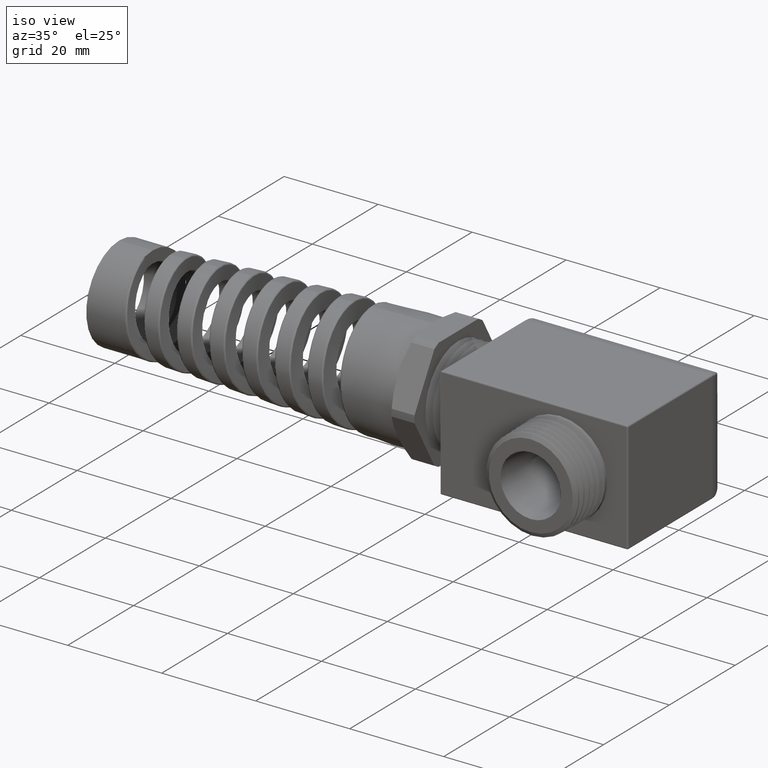
[diagram: clean part render]
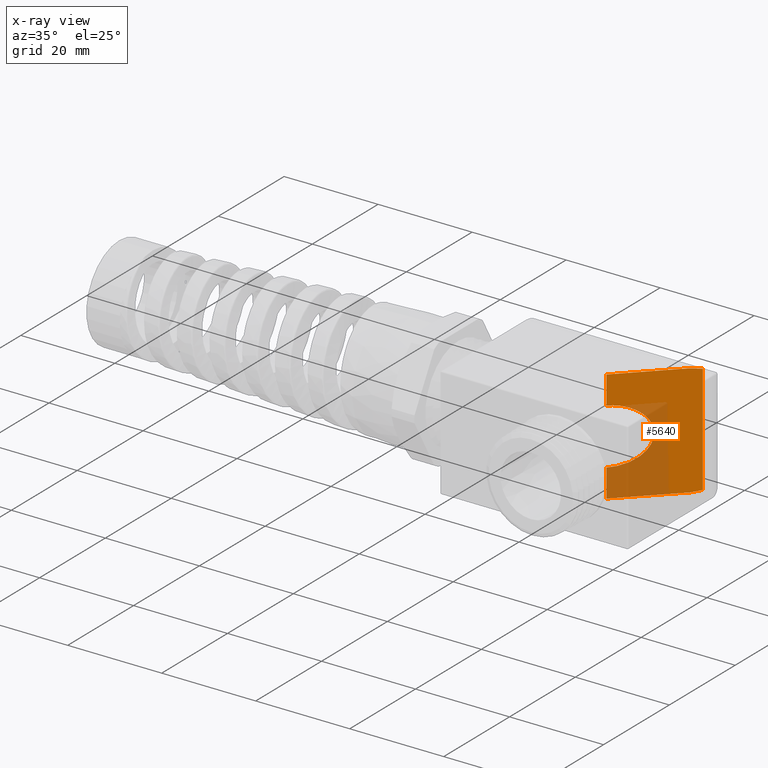
[diagram: x-ray — body ghosted, one internal face saturated and labeled with its STEP entity id]
A machine part, iso view, then the same camera in x-ray: the body is ghosted and one INTERNAL B-rep face — a face not visible from any outside direction — is saturated and labeled: STEP entity #5640.
In plain terms, the highlighted planar face has unit normal (-0.7071, 0.7071, 0).
Its self-contained STEP definition (entity closure, byte-faithful):
#2252 = CARTESIAN_POINT ( 'NONE',  ( 0.9679999999999955300, 0.0000000000000000000, -0.2349999999999999900 ) ) ;
#2292 = CARTESIAN_POINT ( 'NONE',  ( 0.9679999999999955300, 1.616321989494814800E-017, 0.2349999999999999900 ) ) ;
#3158 = DIRECTION ( 'NONE',  ( -0.7071067811865509000, -0.7071067811865441300, 0.0000000000000000000 ) ) ;
#3159 = DIRECTION ( 'NONE',  ( -0.7071067811865441300, 0.7071067811865509000, 0.0000000000000000000 ) ) ;
#3160 = CARTESIAN_POINT ( 'NONE',  ( 1.443555555555555700, 0.4755555555555555100, -0.4703937007874014500 ) ) ;
#3161 = AXIS2_PLACEMENT_3D ( 'NONE', #3160, #3159, #3158 ) ;
#3162 = PLANE ( 'NONE',  #3161 ) ;
#3163 = FACE_OUTER_BOUND ( 'NONE', #5641, .T. ) ;
#3331 = CARTESIAN_POINT ( 'NONE',  ( 1.381333333333332900, 0.4133333333333332700, 0.4699999999999999200 ) ) ;
#3332 = DIRECTION ( 'NONE',  ( 0.0000000000000000000, 0.0000000000000000000, 1.000000000000000000 ) ) ;
#3333 = VECTOR ( 'NONE', #3332, 39.37007874015748100 ) ;
#3334 = CARTESIAN_POINT ( 'NONE',  ( 0.9679999999999955300, 0.0000000000000000000, -0.4703937007874014500 ) ) ;
#3335 = LINE ( 'NONE', #3334, #3333 ) ;
#3336 = DIRECTION ( 'NONE',  ( 0.7071067811865509000, 0.7071067811865441300, 0.0000000000000000000 ) ) ;
#3337 = VECTOR ( 'NONE', #3336, 39.37007874015748100 ) ;
#3338 = CARTESIAN_POINT ( 'NONE',  ( 1.218836982058541400, 0.2508369820585433200, 0.4699999999999999200 ) ) ;
#3339 = LINE ( 'NONE', #3338, #3337 ) ;
#3366 = DIRECTION ( 'NONE',  ( 0.0000000000000000000, 0.0000000000000000000, 1.000000000000000000 ) ) ;
#3367 = VECTOR ( 'NONE', #3366, 39.37007874015748100 ) ;
#3368 = CARTESIAN_POINT ( 'NONE',  ( 0.9679999999999955300, 0.0000000000000000000, -0.4703937007874014500 ) ) ;
#3369 = LINE ( 'NONE', #3368, #3367 ) ;
#3445 = CARTESIAN_POINT ( 'NONE',  ( 1.381333333333332900, 0.4133333333333332700, 0.4699999999999999200 ) ) ;
#3446 = CARTESIAN_POINT ( 'NONE',  ( 1.402581134423580800, 0.4345811344235809300, 0.4699999999999999200 ) ) ;
#3447 = CARTESIAN_POINT ( 'NONE',  ( 1.423522936573932800, 0.4555229365739327800, 0.4664069547920675600 ) ) ;
#3448 = CARTESIAN_POINT ( 'NONE',  ( 1.443555555555555700, 0.4755555555555555100, 0.4593243544286517200 ) ) ;
#3449 = CARTESIAN_POINT ( 'NONE',  ( 1.443555555555555700, 0.4755555555555555100, 0.4593243544286517200 ) ) ;
#3450 =( BOUNDED_CURVE ( )  B_SPLINE_CURVE ( 3, ( #3448, #3447, #3446, #3445 ),
 .UNSPECIFIED., .F., .F. ) 
 B_SPLINE_CURVE_WITH_KNOTS ( ( 4, 4 ),
 ( 1.230959417340774700, 1.570796326794896800 ),
 .UNSPECIFIED. ) 
 CURVE ( )  GEOMETRIC_REPRESENTATION_ITEM ( )  RATIONAL_B_SPLINE_CURVE ( ( 1.000000000000000000, 0.9903990397689925700, 0.9903990397689925700, 1.000000000000000000 ) ) 
 REPRESENTATION_ITEM ( '' )  );
#3500 = CARTESIAN_POINT ( 'NONE',  ( 0.9679999999999955300, -6.137788176939980600E-018, -0.4699999999999999200 ) ) ;
#3501 = CARTESIAN_POINT ( 'NONE',  ( 0.9679999999999955300, 1.616321989494814800E-017, 0.2349999999999999900 ) ) ;
#3502 = CARTESIAN_POINT ( 'NONE',  ( 1.438000000000000200, 0.4699999999999999700, 0.2349999999999998500 ) ) ;
#3503 = CARTESIAN_POINT ( 'NONE',  ( 1.438000000000000200, 0.4699999999999999700, -0.2349999999999998500 ) ) ;
#3504 = CARTESIAN_POINT ( 'NONE',  ( 0.9679999999999955300, 0.0000000000000000000, -0.2349999999999999900 ) ) ;
#3505 =( BOUNDED_CURVE ( )  B_SPLINE_CURVE ( 3, ( #3504, #3503, #3502, #3501 ),
 .UNSPECIFIED., .F., .T. ) 
 B_SPLINE_CURVE_WITH_KNOTS ( ( 4, 4 ),
 ( 1.570796326794896800, 4.712388980384689700 ),
 .UNSPECIFIED. ) 
 CURVE ( )  GEOMETRIC_REPRESENTATION_ITEM ( )  RATIONAL_B_SPLINE_CURVE ( ( 1.000000000000000000, 0.3333333333333333100, 0.3333333333333333100, 1.000000000000000000 ) ) 
 REPRESENTATION_ITEM ( '' )  );
#3506 = CARTESIAN_POINT ( 'NONE',  ( 0.9679999999999955300, -6.137788176939980600E-018, 0.4699999999999999200 ) ) ;
#3507 = CARTESIAN_POINT ( 'NONE',  ( 1.443555555555555700, 0.4755555555555555100, -0.4593243544286517200 ) ) ;
#3508 = DIRECTION ( 'NONE',  ( 0.0000000000000000000, 0.0000000000000000000, 1.000000000000000000 ) ) ;
#3509 = VECTOR ( 'NONE', #3508, 39.37007874015748100 ) ;
#3510 = CARTESIAN_POINT ( 'NONE',  ( 1.443555555555555700, 0.4755555555555555100, -0.4703937007874014500 ) ) ;
#3511 = LINE ( 'NONE', #3510, #3509 ) ;
#3561 = DIRECTION ( 'NONE',  ( -0.7071067811865509000, -0.7071067811865441300, 0.0000000000000000000 ) ) ;
#3562 = VECTOR ( 'NONE', #3561, 39.37007874015748100 ) ;
#3573 = CARTESIAN_POINT ( 'NONE',  ( 0.9817780020556733400, 0.01377800205567775500, -0.4699999999999999200 ) ) ;
#3574 = LINE ( 'NONE', #3573, #3562 ) ;
#3614 = CARTESIAN_POINT ( 'NONE',  ( 1.381333333333332900, 0.4133333333333332200, -0.4699999999999999200 ) ) ;
#3616 =( BOUNDED_CURVE ( )  B_SPLINE_CURVE ( 3, ( #3614, #3679, #3678, #3676 ),
 .UNSPECIFIED., .F., .T. ) 
 B_SPLINE_CURVE_WITH_KNOTS ( ( 4, 4 ),
 ( 4.712388980384689700, 5.052225889838812400 ),
 .UNSPECIFIED. ) 
 CURVE ( )  GEOMETRIC_REPRESENTATION_ITEM ( )  RATIONAL_B_SPLINE_CURVE ( ( 1.000000000000000000, 0.9903990397689925700, 0.9903990397689925700, 1.000000000000000000 ) ) 
 REPRESENTATION_ITEM ( '' )  );
#3619 = CARTESIAN_POINT ( 'NONE',  ( 1.381333333333332900, 0.4133333333333332200, -0.4699999999999999200 ) ) ;
#3676 = CARTESIAN_POINT ( 'NONE',  ( 1.443555555555555700, 0.4755555555555555100, -0.4593243544286517200 ) ) ;
#3678 = CARTESIAN_POINT ( 'NONE',  ( 1.423522936573932800, 0.4555229365739327800, -0.4664069547920676200 ) ) ;
#3679 = CARTESIAN_POINT ( 'NONE',  ( 1.402581134423580800, 0.4345811344235808700, -0.4699999999999999200 ) ) ;
#5596 = VERTEX_POINT ( 'NONE', #2252 ) ;
#5608 = VERTEX_POINT ( 'NONE', #2292 ) ;
#5640 = ADVANCED_FACE ( 'NONE', ( #3163 ), #3162, .T. ) ;
#5641 = EDGE_LOOP ( 'NONE', ( #5642, #5832, #5732, #5858, #5901, #5828, #5897, #5900 ) ) ;
#5642 = ORIENTED_EDGE ( 'NONE', *, *, #5743, .T. ) ;
#5731 = EDGE_CURVE ( 'NONE', #5836, #5735, #3339, .T. ) ;
#5732 = ORIENTED_EDGE ( 'NONE', *, *, #5733, .T. ) ;
#5733 = EDGE_CURVE ( 'NONE', #5608, #5836, #3335, .T. ) ;
#5735 = VERTEX_POINT ( 'NONE', #3331 ) ;
#5743 = EDGE_CURVE ( 'NONE', #5837, #5596, #3369, .T. ) ;
#5815 = EDGE_CURVE ( 'NONE', #5816, #5735, #3450, .T. ) ;
#5816 = VERTEX_POINT ( 'NONE', #3449 ) ;
#5828 = ORIENTED_EDGE ( 'NONE', *, *, #5829, .F. ) ;
#5829 = EDGE_CURVE ( 'NONE', #5831, #5816, #3511, .T. ) ;
#5831 = VERTEX_POINT ( 'NONE', #3507 ) ;
#5832 = ORIENTED_EDGE ( 'NONE', *, *, #5834, .T. ) ;
#5834 = EDGE_CURVE ( 'NONE', #5596, #5608, #3505, .T. ) ;
#5836 = VERTEX_POINT ( 'NONE', #3506 ) ;
#5837 = VERTEX_POINT ( 'NONE', #3500 ) ;
#5858 = ORIENTED_EDGE ( 'NONE', *, *, #5731, .T. ) ;
#5873 = EDGE_CURVE ( 'NONE', #5899, #5837, #3574, .T. ) ;
#5897 = ORIENTED_EDGE ( 'NONE', *, *, #5898, .F. ) ;
#5898 = EDGE_CURVE ( 'NONE', #5899, #5831, #3616, .T. ) ;
#5899 = VERTEX_POINT ( 'NONE', #3619 ) ;
#5900 = ORIENTED_EDGE ( 'NONE', *, *, #5873, .T. ) ;
#5901 = ORIENTED_EDGE ( 'NONE', *, *, #5815, .F. ) ;